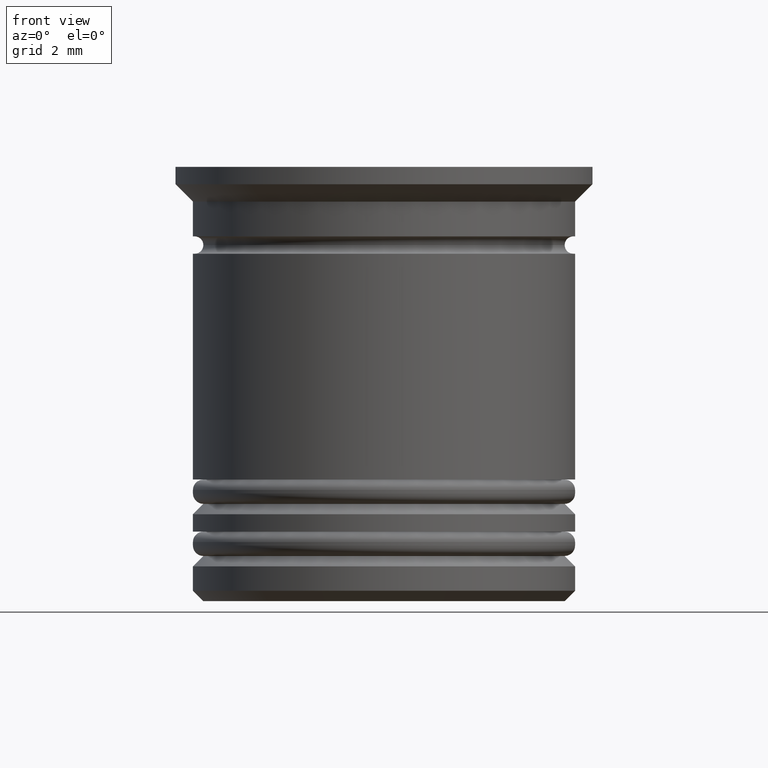
[diagram: clean part render]
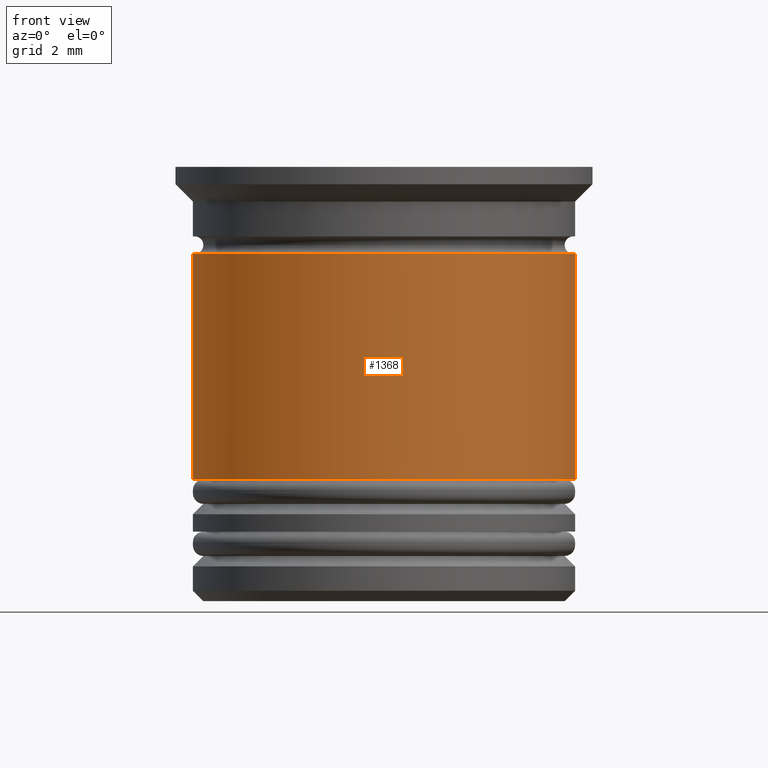
[diagram: same view with one face highlighted and labeled with its STEP entity id]
A machine part, front view. The second image highlights one B-rep face of the part: STEP entity #1368.
In plain terms, the highlighted cylindrical surface (partial cylindrical patch) has radius 5.5 mm, axis along (-0, -0, 1).
Its self-contained STEP definition (entity closure, byte-faithful):
#15 = LINE ( 'NONE', #1246, #806 ) ;
#90 = ORIENTED_EDGE ( 'NONE', *, *, #1434, .F. ) ;
#99 = EDGE_CURVE ( 'NONE', #416, #862, #15, .T. ) ;
#243 = DIRECTION ( 'NONE',  ( -0.000000000000000000, -0.000000000000000000, 1.000000000000000000 ) ) ;
#361 = CARTESIAN_POINT ( 'NONE',  ( 0.000000000000000000, 0.000000000000000000, 0.000000000000000000 ) ) ;
#387 = CARTESIAN_POINT ( 'NONE',  ( 0.000000000000000000, 0.000000000000000000, -9.000000000000001776 ) ) ;
#416 = VERTEX_POINT ( 'NONE', #1596 ) ;
#492 = AXIS2_PLACEMENT_3D ( 'NONE', #1057, #1174, #1211 ) ;
#502 = DIRECTION ( 'NONE',  ( -0.000000000000000000, -0.000000000000000000, 1.000000000000000000 ) ) ;
#518 = CARTESIAN_POINT ( 'NONE',  ( -5.499999999999999112, 6.735557395310441037E-16, -2.500000000000000000 ) ) ;
#583 = EDGE_CURVE ( 'NONE', #1499, #1268, #1293, .T. ) ;
#659 = DIRECTION ( 'NONE',  ( 1.000000000000000000, 0.000000000000000000, 0.000000000000000000 ) ) ;
#754 = ORIENTED_EDGE ( 'NONE', *, *, #99, .T. ) ;
#806 = VECTOR ( 'NONE', #934, 1000.000000000000000 ) ;
#829 = DIRECTION ( 'NONE',  ( -0.000000000000000000, -0.000000000000000000, 1.000000000000000000 ) ) ;
#832 = CARTESIAN_POINT ( 'NONE',  ( 5.499999999999999112, 0.000000000000000000, -2.500000000000000000 ) ) ;
#862 = VERTEX_POINT ( 'NONE', #832 ) ;
#872 = CIRCLE ( 'NONE', #492, 5.499999999999999112 ) ;
#905 = CIRCLE ( 'NONE', #999, 5.500000000000001776 ) ;
#934 = DIRECTION ( 'NONE',  ( -0.000000000000000000, -0.000000000000000000, 1.000000000000000000 ) ) ;
#999 = AXIS2_PLACEMENT_3D ( 'NONE', #387, #243, #1602 ) ;
#1057 = CARTESIAN_POINT ( 'NONE',  ( 0.000000000000000000, 0.000000000000000000, -2.500000000000000000 ) ) ;
#1095 = AXIS2_PLACEMENT_3D ( 'NONE', #361, #829, #659 ) ;
#1130 = FACE_OUTER_BOUND ( 'NONE', #1501, .T. ) ;
#1158 = ORIENTED_EDGE ( 'NONE', *, *, #583, .F. ) ;
#1174 = DIRECTION ( 'NONE',  ( -0.000000000000000000, -0.000000000000000000, 1.000000000000000000 ) ) ;
#1186 = CARTESIAN_POINT ( 'NONE',  ( -5.500000000000000888, 6.735557395310443995E-16, -9.000000000000001776 ) ) ;
#1211 = DIRECTION ( 'NONE',  ( 1.000000000000000000, 0.000000000000000000, 0.000000000000000000 ) ) ;
#1246 = CARTESIAN_POINT ( 'NONE',  ( 5.500000000000000000, 0.000000000000000000, 0.000000000000000000 ) ) ;
#1268 = VERTEX_POINT ( 'NONE', #518 ) ;
#1293 = LINE ( 'NONE', #1312, #1714 ) ;
#1312 = CARTESIAN_POINT ( 'NONE',  ( -5.500000000000000000, 6.735557395310442023E-16, 0.000000000000000000 ) ) ;
#1368 = ADVANCED_FACE ( 'NONE', ( #1130 ), #1755, .T. ) ;
#1434 = EDGE_CURVE ( 'NONE', #1268, #862, #872, .T. ) ;
#1499 = VERTEX_POINT ( 'NONE', #1186 ) ;
#1501 = EDGE_LOOP ( 'NONE', ( #1158, #1993, #754, #90 ) ) ;
#1573 = EDGE_CURVE ( 'NONE', #1499, #416, #905, .T. ) ;
#1596 = CARTESIAN_POINT ( 'NONE',  ( 5.500000000000001776, 0.000000000000000000, -9.000000000000001776 ) ) ;
#1602 = DIRECTION ( 'NONE',  ( 1.000000000000000000, 0.000000000000000000, 0.000000000000000000 ) ) ;
#1714 = VECTOR ( 'NONE', #502, 1000.000000000000000 ) ;
#1755 = CYLINDRICAL_SURFACE ( 'NONE', #1095, 5.500000000000000000 ) ;
#1993 = ORIENTED_EDGE ( 'NONE', *, *, #1573, .T. ) ;